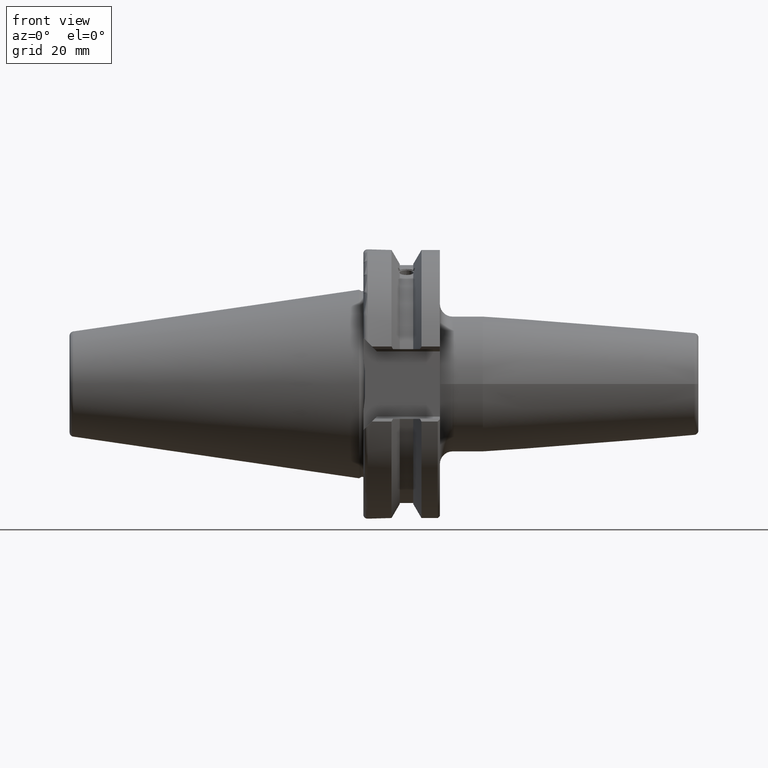
[diagram: clean part render]
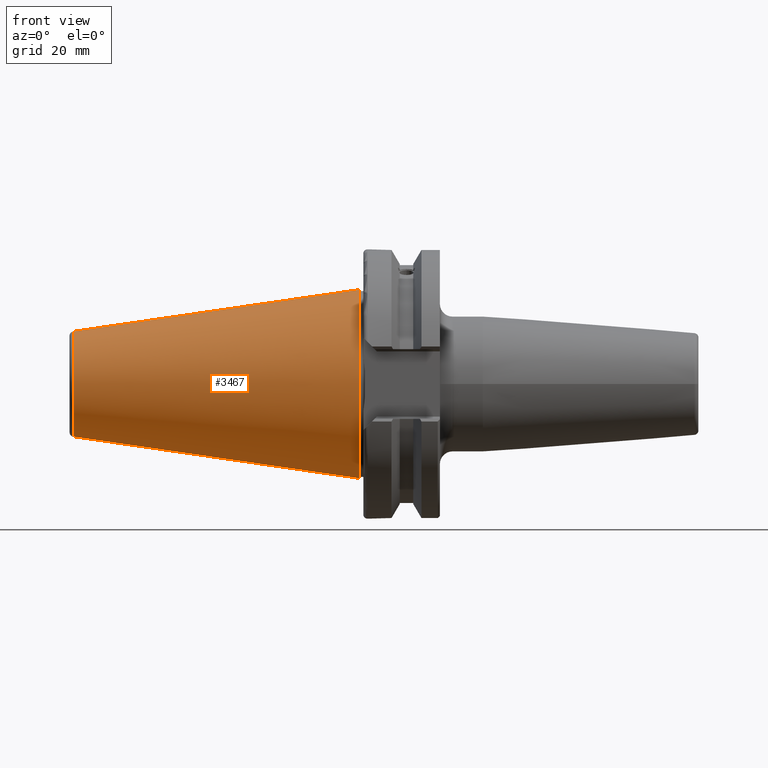
[diagram: same view with one face highlighted and labeled with its STEP entity id]
A machine part, front view. The second image highlights one B-rep face of the part: STEP entity #3467.
In plain terms, the highlighted conical surface has half-angle 8.297 deg.
Its self-contained STEP definition (entity closure, byte-faithful):
#1001=CARTESIAN_POINT('',(-6.739430687632E1,0.E0,0.E0));
#1002=DIRECTION('',(-1.E0,0.E0,0.E0));
#1003=DIRECTION('',(0.E0,0.E0,-1.E0));
#1004=AXIS2_PLACEMENT_3D('',#1001,#1002,#1003);
#1006=DIRECTION('',(-9.895329835059E-1,-1.947755452379E-13,-1.443068763221E-1));
#1007=VECTOR('',#1006,6.810718591466E1);
#1008=CARTESIAN_POINT('',(0.E0,0.E0,2.2225E1));
#1009=LINE('',#1008,#1007);
#1010=CARTESIAN_POINT('',(0.E0,0.E0,0.E0));
#1011=DIRECTION('',(1.E0,0.E0,0.E0));
#1012=DIRECTION('',(0.E0,0.E0,1.E0));
#1013=AXIS2_PLACEMENT_3D('',#1010,#1011,#1012);
#1015=DIRECTION('',(-9.895329835059E-1,1.947888560543E-13,1.443068763221E-1));
#1016=VECTOR('',#1015,6.810718591466E1);
#1017=CARTESIAN_POINT('',(0.E0,0.E0,-2.2225E1));
#1018=LINE('',#1017,#1016);
#1817=CARTESIAN_POINT('',(0.E0,0.E0,-2.2225E1));
#1818=CARTESIAN_POINT('',(0.E0,0.E0,2.2225E1));
#1819=VERTEX_POINT('',#1817);
#1820=VERTEX_POINT('',#1818);
#1901=CARTESIAN_POINT('',(-6.739430687632E1,0.E0,-1.239666474557E1));
#1902=CARTESIAN_POINT('',(-6.739430687632E1,0.E0,1.239666474557E1));
#1903=VERTEX_POINT('',#1901);
#1904=VERTEX_POINT('',#1902);
#3455=CARTESIAN_POINT('',(-3.369715343816E1,0.E0,0.E0));
#3456=DIRECTION('',(1.E0,0.E0,0.E0));
#3457=DIRECTION('',(0.E0,0.E0,1.E0));
#3458=AXIS2_PLACEMENT_3D('',#3455,#3456,#3457);
#3459=CONICAL_SURFACE('',#3458,1.731083237279E1,8.297144E0);
#3461=ORIENTED_EDGE('',*,*,#3460,.T.);
#3462=ORIENTED_EDGE('',*,*,#2174,.F.);
#3463=ORIENTED_EDGE('',*,*,#3445,.T.);
#3464=ORIENTED_EDGE('',*,*,#2170,.T.);
#3465=EDGE_LOOP('',(#3461,#3462,#3463,#3464));
#3466=FACE_OUTER_BOUND('',#3465,.F.);
#3467=ADVANCED_FACE('',(#3466),#3459,.T.);
#1005=CIRCLE('',#1004,1.239666474557E1);
#1014=CIRCLE('',#1013,2.2225E1);
#2170=EDGE_CURVE('',#1819,#1903,#1018,.T.);
#2174=EDGE_CURVE('',#1820,#1904,#1009,.T.);
#3445=EDGE_CURVE('',#1820,#1819,#1014,.T.);
#3460=EDGE_CURVE('',#1903,#1904,#1005,.T.);